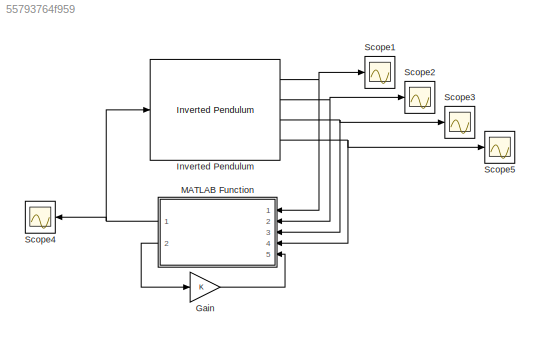
MODEL slx_55793764f959
KIND model
CONFIG AbsTol = auto
CONFIG EnableMultiTasking = off
CONFIG FixedStep = 0.02
CONFIG MaxStep = auto
CONFIG MinStep = auto
CONFIG RelTol = 1e-3
CONFIG SampleTimeConstraint = Unconstrained
CONFIG Solver = VariableStepAuto
CONFIG SolverName = VariableStepAuto
CONFIG StartTime = 0.0
CONFIG StopTime = 50
BLOCK [Gain] Gain
BLOCK [Reference] Inverted Pendulum  REF=ctsmodel/Inverted Pendulum/Inverted Pendulum  (lib defined in slx_d74dae9424dc)
  Ports = [1, 4]
  SourceBlock = ctsmodel/Inverted Pendulum/Inverted Pendulum
  SourceProductName = Control System Model Toolbox
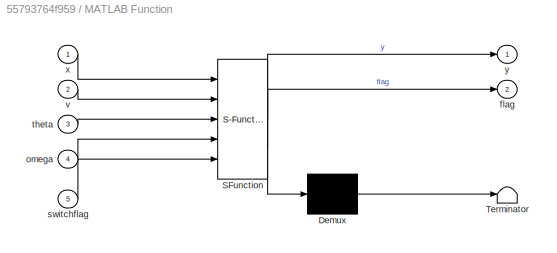
BLOCK [SubSystem] MATLAB Function
  ErrorFcn = Stateflow.Translate.translate
  NameLocation = top
  PermitHierarchicalResolution = ExplicitOnly
  Ports = [5, 2]
  RequestExecContextInheritance = off
  SFBlockType = MATLAB Function
  TreatAsAtomicUnit = on
BLOCK [Demux] MATLAB Function/ Demux 
  Outputs = 1
  Ports = [1, 1]
BLOCK [S-Function] MATLAB Function/ SFunction 
  EnableBusSupport = on
  FunctionName = sf_sfun
  PortCounts = [5 3]
  Ports = [5, 3]
  SFcnIsStateOwnerBlock = off
  SFunctionDeploymentMode = off
  Tag = Stateflow S-Function 2
BLOCK [Terminator] MATLAB Function/ Terminator 
BLOCK [Outport] MATLAB Function/flag
  Port = 2
BLOCK [Inport] MATLAB Function/omega
  Port = 4
BLOCK [Inport] MATLAB Function/switchflag
  Port = 5
BLOCK [Inport] MATLAB Function/theta
  Port = 3
BLOCK [Inport] MATLAB Function/v
  Port = 2
BLOCK [Inport] MATLAB Function/x
BLOCK [Outport] MATLAB Function/y
BLOCK [Scope] Scope1
  Floating = off
  NumInputPorts = 1
  Ports = [1]
  ScopeSpecificationString = Simulink.scopes.TimeScopeBlockCfg('CurrentConfiguration', extmgr.ConfigurationSet(extmgr.Configuration('Core','General UI',true),extmgr.Configuration('Core','Source UI',true),extmgr.Configuration('Sources','WiredSimulink',true,'DataLoggingVariableName','ScopeData1'),extmgr.Configuration('Visuals','Time Domain',true,'SerializedDisplays',{struct('MinYLimReal','-0.02324','MaxYLimReal','0.19974','YLab...<+1407ch>
BLOCK [Scope] Scope2
  Floating = off
  NumInputPorts = 1
  Ports = [1]
  ScopeSpecificationString = Simulink.scopes.TimeScopeBlockCfg('CurrentConfiguration', extmgr.ConfigurationSet(extmgr.Configuration('Core','General UI',true),extmgr.Configuration('Core','Source UI',true),extmgr.Configuration('Sources','WiredSimulink',true,'DataLoggingVariableName','ScopeData2'),extmgr.Configuration('Visuals','Time Domain',true,'SerializedDisplays',{struct('MinYLimReal','-0.53602','MaxYLimReal','0.53333','YLab...<+1407ch>
BLOCK [Scope] Scope3
  Floating = off
  NumInputPorts = 1
  Ports = [1]
  ScopeSpecificationString = Simulink.scopes.TimeScopeBlockCfg('CurrentConfiguration', extmgr.ConfigurationSet(extmgr.Configuration('Core','General UI',true),extmgr.Configuration('Core','Source UI',true),extmgr.Configuration('Sources','WiredSimulink',true,'DataLoggingVariableName','ScopeData3'),extmgr.Configuration('Visuals','Time Domain',true,'SerializedDisplays',{struct('MinYLimReal','-0.75427','MaxYLimReal','6.78294','YLab...<+1407ch>
BLOCK [Scope] Scope4
  Floating = off
  NameLocation = top
  NumInputPorts = 1
  Ports = [1]
  ScopeSpecificationString = Simulink.scopes.TimeScopeBlockCfg('CurrentConfiguration', extmgr.ConfigurationSet(extmgr.Configuration('Core','General UI',true),extmgr.Configuration('Core','Source UI',true),extmgr.Configuration('Sources','WiredSimulink',true,'DataLoggingVariableName','ScopeData4'),extmgr.Configuration('Visuals','Time Domain',true,'SerializedDisplays',{struct('MinYLimReal','-6.92012','MaxYLimReal','6.94117','YLab...<+1405ch>
BLOCK [Scope] Scope5
  Floating = off
  NumInputPorts = 1
  Ports = [1]
  ScopeSpecificationString = Simulink.scopes.TimeScopeBlockCfg('CurrentConfiguration', extmgr.ConfigurationSet(extmgr.Configuration('Core','General UI',true),extmgr.Configuration('Core','Source UI',true),extmgr.Configuration('Sources','WiredSimulink',true,'DataLoggingVariableName','ScopeData4'),extmgr.Configuration('Visuals','Time Domain',true,'SerializedDisplays',{struct('MinYLimReal','-14.69975','MaxYLimReal','14.60449','YL...<+1413ch>
LINE Gain:1 -> MATLAB Function:5
NET Inverted Pendulum:1 -> MATLAB Function:1, Scope1:1
NET Inverted Pendulum:2 -> MATLAB Function:2, Scope2:1
NET Inverted Pendulum:3 -> MATLAB Function:3, Scope3:1
NET Inverted Pendulum:4 -> MATLAB Function:4, Scope5:1
NET MATLAB Function:1 -> Inverted Pendulum:1, Scope4:1
LINE MATLAB Function:2 -> Gain:1
note: NET lines group one-source signal fan-out (src -> all destinations, sorted); 1:1 wires keep LINE
CHART MATLAB Function states=1 transitions=1
  STATE_LABEL 'eML_blk_kernel()'
  STATE_LABEL 'SCRIPT:\nfunction [y,flag] = control(x,v,theta,omega,switchflag)\n\n% model parameters\nm = 0.2;\nM = 1;\nL = 0.2;\ng = 9.81;\n\n% Lyapunov control parameters\nkv = 1;\nkx = 0.01;\nkd = 1;\nke = 1;\n\n% LQR K \nK = [-10.0000  -13.9080  -57.6004   -8.0008];\n\n% system energy\nE = 0.5*[v,omega]*[m+M m*L*cos(theta);m*L*cos(theta) m*L^2]*[v;omega]+m*g*L*(cos(theta)-1);\n\n% switch to LQR control when approximate to stabl...<+302ch>'
CHART  states=0 transitions=0
